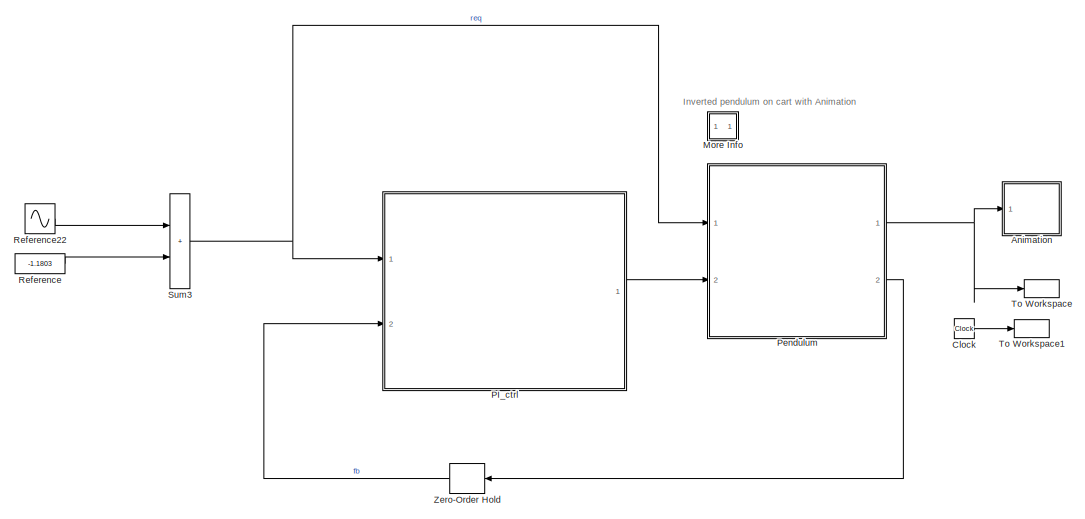
[diagram: root canvas - part 1/2, full width, top band]
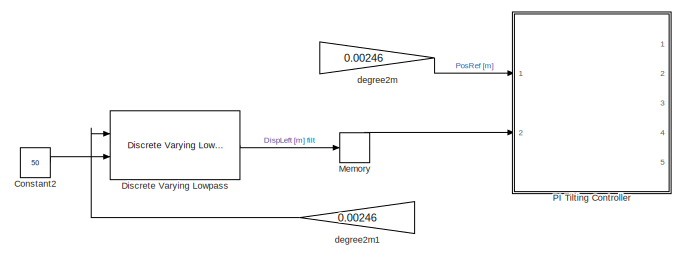
[diagram: root canvas - part 2/2, bottom left region]
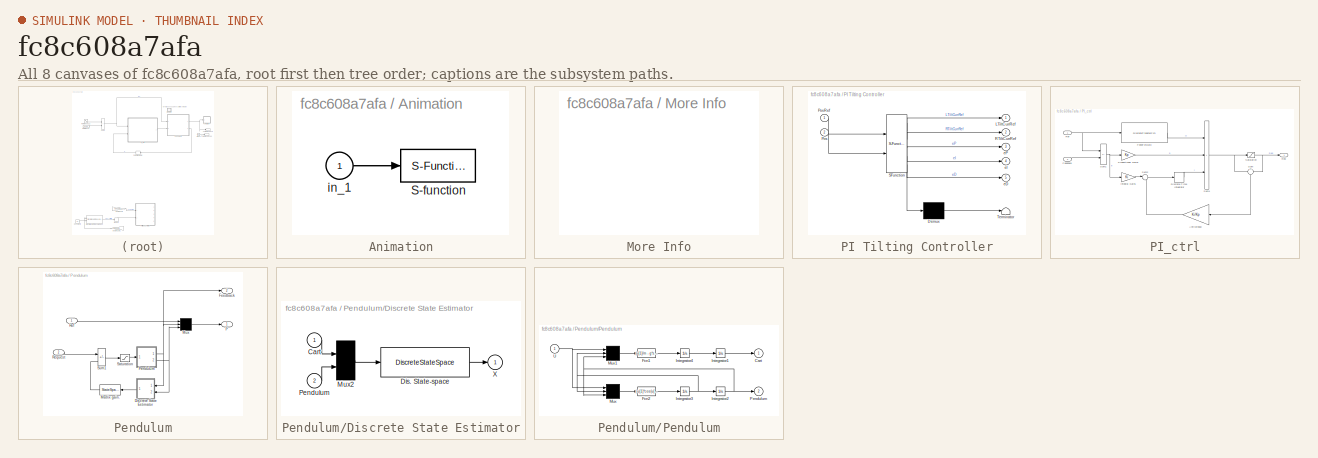
[diagram: thumbnail index - all 8 canvases of the model, root first then tree order]
MODEL slx_fc8c608a7afa
KIND model
CONFIG AbsTol = 1e-6
CONFIG EnableMultiTasking = off
CONFIG FixedStep = 0.001
CONFIG MaxStep = 0.02
CONFIG MinStep = auto
CONFIG RelTol = 1e-3
CONFIG SampleTimeConstraint = Unconstrained
CONFIG SolverName = ode8
CONFIG StartTime = 0
CONFIG StopTime = inf
BLOCK [SubSystem] Animation
  Ports = [1]
  RequestExecContextInheritance = off
BLOCK [S-Function] Animation/S-function
  DeleteFcn = pendan([],[],[],'DeleteBlock');
  EnableBusSupport = off
  FunctionName = pendan
  Parameters = RefBlock
  Ports = [1]
  SFcnIsStateOwnerBlock = off
  SFunctionDeploymentMode = off
BLOCK [Inport] Animation/in_1
BLOCK [Clock] Clock
BLOCK [Constant] Constant2
  Commented = on
  Value = 50
BLOCK [Reference] Discrete Varying Lowpass  REF=cstblocks/Linear Parameter Varying/Discrete Varying Lowpass
  Commented = on
  Ports = [2, 1]
  SourceBlock = cstblocks/Linear Parameter Varying/Discrete Varying Lowpass
  SourceProductBaseCode = CT
  SourceType = Discrete Varying Lowpass
BLOCK [Memory] Memory
  Commented = on
  InheritSampleTime = on
BLOCK [SubSystem] More Info
  OpenFcn = showExample('simulink_general/penddemoExample')
  Ports = []
  RequestExecContextInheritance = off
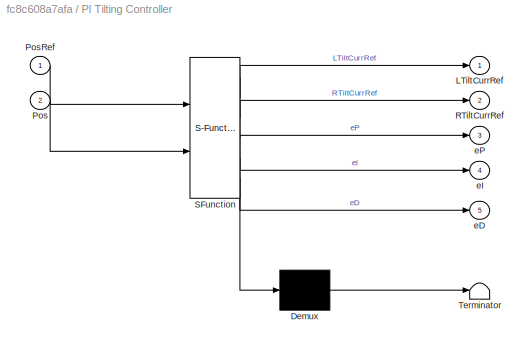
BLOCK [SubSystem] PI Tilting Controller
  Commented = on
  ErrorFcn = Stateflow.Translate.translate
  PermitHierarchicalResolution = ExplicitOnly
  Ports = [2, 5]
  RequestExecContextInheritance = off
  SFBlockType = MATLAB Function
  SystemSampleTime = 5e-3
  TreatAsAtomicUnit = on
BLOCK [Demux] PI Tilting Controller/ Demux 
  Outputs = 1
  Ports = [1, 1]
BLOCK [S-Function] PI Tilting Controller/ SFunction 
  EnableBusSupport = on
  FunctionName = sf_sfun
  PortCounts = [2 6]
  Ports = [2, 6]
  SFcnIsStateOwnerBlock = off
  SFunctionDeploymentMode = off
  Tag = Stateflow S-Function 10
BLOCK [Terminator] PI Tilting Controller/ Terminator 
BLOCK [Outport] PI Tilting Controller/LTiltCurrRef
  VectorParamsAs1DForOutWhenUnconnected = off
BLOCK [Inport] PI Tilting Controller/Pos
  Port = 2
BLOCK [Inport] PI Tilting Controller/PosRef
BLOCK [Outport] PI Tilting Controller/RTiltCurrRef
  Port = 2
  VectorParamsAs1DForOutWhenUnconnected = off
BLOCK [Outport] PI Tilting Controller/eD
  Port = 5
  VectorParamsAs1DForOutWhenUnconnected = off
BLOCK [Outport] PI Tilting Controller/eI
  Port = 4
  VectorParamsAs1DForOutWhenUnconnected = off
BLOCK [Outport] PI Tilting Controller/eP
  Port = 3
  VectorParamsAs1DForOutWhenUnconnected = off
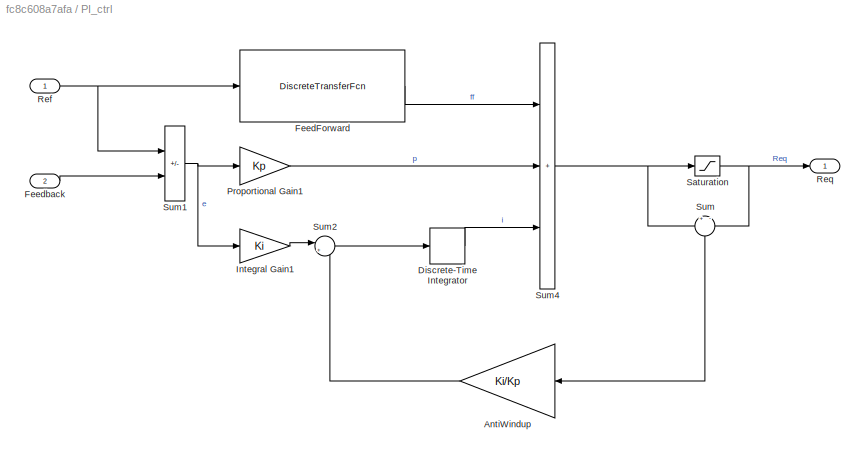
BLOCK [SubSystem] PI_ctrl
  Ports = [2, 1]
  RequestExecContextInheritance = off
BLOCK [Gain] PI_ctrl/AntiWindup
  Gain = Ki/Kp
  OutDataTypeStr = Inherit: Same as input
  ParamDataTypeStr = Inherit: Same as input
  SaturateOnIntegerOverflow = on
BLOCK [DiscreteIntegrator] PI_ctrl/Discrete-Time Integrator
  ICPrevOutput = DiscIntNeverNeededParam
  ICPrevScaledInput = DiscIntNeverNeededParam
  InitialConditionSetting = Auto
  IntegratorMethod = Accumulation: Trapezoidal
  Ports = [1, 1]
  SampleTime = -1
  gainval = Ts/5
BLOCK [DiscreteTransferFcn] PI_ctrl/FeedForward
  Denominator = [1 -0.8187]*2
  InputPortMap = u0
  Numerator = [7.12 -7.12]*0.1
  Ports = [1, 1]
  SampleTime = Ts
BLOCK [Inport] PI_ctrl/Feedback
  NameLocation = top
  Port = 2
BLOCK [Gain] PI_ctrl/Integral Gain1
  Gain = Ki
  OutDataTypeStr = Inherit: Same as input
  ParamDataTypeStr = Inherit: Same as input
  SaturateOnIntegerOverflow = on
BLOCK [Gain] PI_ctrl/Proportional Gain1
  Gain = Kp
  OutDataTypeStr = Inherit: Same as input
  ParamDataTypeStr = Inherit: Same as input
  SaturateOnIntegerOverflow = on
BLOCK [Inport] PI_ctrl/Ref
BLOCK [Outport] PI_ctrl/Req
BLOCK [Saturate] PI_ctrl/Saturation
  LowerLimit = -Req_lim
  UpperLimit = Req_lim
BLOCK [Sum] PI_ctrl/Sum
  Inputs = +|-
  NameLocation = left
  Ports = [2, 1]
BLOCK [Sum] PI_ctrl/Sum1
  IconShape = rectangular
  InputSameDT = on
  Inputs = +-
  OutDataTypeStr = Inherit: Same as first input
  Ports = [2, 1]
  SaturateOnIntegerOverflow = on
BLOCK [Sum] PI_ctrl/Sum2
  Inputs = |+-
  Ports = [2, 1]
BLOCK [Sum] PI_ctrl/Sum4
  IconShape = rectangular
  InputSameDT = on
  Inputs = +++
  OutDataTypeStr = Inherit: Same as first input
  Ports = [3, 1]
  SaturateOnIntegerOverflow = on
BLOCK [SubSystem] Pendulum
  Ports = [2, 2]
  RequestExecContextInheritance = off
BLOCK [SubSystem] Pendulum/Discrete State Estimator
  Ports = [2, 1]
  RequestExecContextInheritance = off
BLOCK [Inport] Pendulum/Discrete State Estimator/Cart
BLOCK [DiscreteStateSpace] Pendulum/Discrete State Estimator/Dis. State-space
  A = zeros(2)
  B = -eye(2)/Ts
  C = [0 0; 1 0; 0 0; 0 1]
  D = [1 0; 1/Ts 0; 0 1; 0 1/Ts]
  SampleTime = Ts
BLOCK [Mux] Pendulum/Discrete State Estimator/Mux2
  Inputs = 2
  Ports = [2, 1]
BLOCK [Inport] Pendulum/Discrete State Estimator/Pendulum
  Port = 2
BLOCK [Outport] Pendulum/Discrete State Estimator/X
  InitialOutput = 0
  VectorParamsAs1DForOutWhenUnconnected = off
BLOCK [Outport] Pendulum/Feedback
  Port = 2
BLOCK [StateSpace] Pendulum/Matrix gain.
  A = []
  B = []
  C = []
  D = K
  InitialCondition = 0
  Ports = [1, 1]
BLOCK [Mux] Pendulum/Mux
  Inputs = 3
  Ports = [3, 1]
BLOCK [Outport] Pendulum/P
BLOCK [SubSystem] Pendulum/Pendulum
  Ports = [1, 2]
  RequestExecContextInheritance = off
BLOCK [Outport] Pendulum/Pendulum/Cart
  InitialOutput = 0
  VectorParamsAs1DForOutWhenUnconnected = off
BLOCK [Fcn] Pendulum/Pendulum/Fcn1
  Expr = (u[1]/m - g*sin(u[3])*cos(u[3]) + l*power(u[2],2)*sin(u[3]))/(Mcart/m + power(sin(u[3]),2))
BLOCK [Fcn] Pendulum/Pendulum/Fcn2
  Expr = (-u[1]*cos(u[3])/m + (Mcart+m)*g*sin(u[3])/m - l*power(u[2],2)*sin(u[3])*cos(u[3]))/(l*(Mcart/m + power(sin(u[3]),2)))
BLOCK [Integrator] Pendulum/Pendulum/Integrator1
  Ports = [1, 1]
BLOCK [Integrator] Pendulum/Pendulum/Integrator2
  Ports = [1, 1]
BLOCK [Integrator] Pendulum/Pendulum/Integrator3
  Ports = [1, 1]
BLOCK [Integrator] Pendulum/Pendulum/Integrator4
  Ports = [1, 1]
BLOCK [Mux] Pendulum/Pendulum/Mux
  Inputs = 3
  Ports = [3, 1]
BLOCK [Mux] Pendulum/Pendulum/Mux1
  Inputs = 3
  Ports = [3, 1]
BLOCK [Outport] Pendulum/Pendulum/Pendulum
  InitialOutput = 0
  Port = 2
  VectorParamsAs1DForOutWhenUnconnected = off
BLOCK [Inport] Pendulum/Pendulum/U
BLOCK [Inport] Pendulum/Ref
BLOCK [Inport] Pendulum/Request
  Port = 2
BLOCK [Saturate] Pendulum/Saturation
  LowerLimit = -10
  UpperLimit = 10
BLOCK [Sum] Pendulum/Sum1
  IconShape = rectangular
  InputSameDT = on
  Inputs = +-
  OutDataTypeStr = Inherit: Same as first input
  Ports = [2, 1]
  SaturateOnIntegerOverflow = on
BLOCK [Constant] Reference
  Value = -1.1803
BLOCK [Sin] Reference22
  Amplitude = 2
  Frequency = 0.5
  Ports = [0, 1]
BLOCK [Sum] Sum3
  IconShape = rectangular
  InputSameDT = on
  OutDataTypeStr = Inherit: Same as first input
  Ports = [2, 1]
  SaturateOnIntegerOverflow = on
BLOCK [ToWorkspace] To Workspace
  Ports = [1]
  SampleTime = 0.1
  VariableName = y
BLOCK [ToWorkspace] To Workspace1
  Ports = [1]
  SampleTime = 0.1
  VariableName = t
BLOCK [ZeroOrderHold] Zero-Order Hold
  SampleTime = 0.040
BLOCK [Gain] degree2m
  Commented = on
  Gain = 0.00246
BLOCK [Gain] degree2m1
  Commented = on
  Gain = 0.00246
ANNOTATION (root): Inverted pendulum on cart with Animation
LINE Animation/in_1:1 -> Animation/S-function:1
LINE Clock:1 -> To Workspace1:1
LINE Constant2:1 -> Discrete Varying Lowpass:2
LINE Discrete Varying Lowpass:1 -> Memory:1
LINE Memory:1 -> PI Tilting Controller:2
LINE PI_ctrl/AntiWindup:1 -> PI_ctrl/Sum2:2
LINE PI_ctrl/Discrete-Time Integrator:1 -> PI_ctrl/Sum4:3
LINE PI_ctrl/FeedForward:1 -> PI_ctrl/Sum4:1
LINE PI_ctrl/Feedback:1 -> PI_ctrl/Sum1:2
LINE PI_ctrl/Integral Gain1:1 -> PI_ctrl/Sum2:1
LINE PI_ctrl/Proportional Gain1:1 -> PI_ctrl/Sum4:2
NET PI_ctrl/Ref:1 -> PI_ctrl/FeedForward:1, PI_ctrl/Sum1:1
NET PI_ctrl/Saturation:1 -> PI_ctrl/Req:1, PI_ctrl/Sum:2
NET PI_ctrl/Sum1:1 -> PI_ctrl/Integral Gain1:1, PI_ctrl/Proportional Gain1:1
LINE PI_ctrl/Sum2:1 -> PI_ctrl/Discrete-Time Integrator:1
NET PI_ctrl/Sum4:1 -> PI_ctrl/Saturation:1, PI_ctrl/Sum:1
LINE PI_ctrl/Sum:1 -> PI_ctrl/AntiWindup:1
LINE PI_ctrl:1 -> Pendulum:2
LINE Pendulum/Discrete State Estimator/Cart:1 -> Pendulum/Discrete State Estimator/Mux2:1
LINE Pendulum/Discrete State Estimator/Dis. State-space:1 -> Pendulum/Discrete State Estimator/X:1
LINE Pendulum/Discrete State Estimator/Mux2:1 -> Pendulum/Discrete State Estimator/Dis. State-space:1
LINE Pendulum/Discrete State Estimator/Pendulum:1 -> Pendulum/Discrete State Estimator/Mux2:2
LINE Pendulum/Discrete State Estimator:1 -> Pendulum/Matrix gain.:1
LINE Pendulum/Matrix gain.:1 -> Pendulum/Sum1:2
LINE Pendulum/Mux:1 -> Pendulum/P:1
LINE Pendulum/Pendulum/Fcn1:1 -> Pendulum/Pendulum/Integrator4:1
LINE Pendulum/Pendulum/Fcn2:1 -> Pendulum/Pendulum/Integrator3:1
LINE Pendulum/Pendulum/Integrator1:1 -> Pendulum/Pendulum/Cart:1
NET Pendulum/Pendulum/Integrator2:1 -> Pendulum/Pendulum/Mux1:3, Pendulum/Pendulum/Mux:3, Pendulum/Pendulum/Pendulum:1
NET Pendulum/Pendulum/Integrator3:1 -> Pendulum/Pendulum/Integrator2:1, Pendulum/Pendulum/Mux1:2, Pendulum/Pendulum/Mux:2
LINE Pendulum/Pendulum/Integrator4:1 -> Pendulum/Pendulum/Integrator1:1
LINE Pendulum/Pendulum/Mux1:1 -> Pendulum/Pendulum/Fcn1:1
LINE Pendulum/Pendulum/Mux:1 -> Pendulum/Pendulum/Fcn2:1
NET Pendulum/Pendulum/U:1 -> Pendulum/Pendulum/Mux1:1, Pendulum/Pendulum/Mux:1
NET Pendulum/Pendulum:1 -> Pendulum/Discrete State Estimator:1, Pendulum/Feedback:1, Pendulum/Mux:2
NET Pendulum/Pendulum:2 -> Pendulum/Discrete State Estimator:2, Pendulum/Mux:3
LINE Pendulum/Ref:1 -> Pendulum/Mux:1
LINE Pendulum/Request:1 -> Pendulum/Sum1:1
LINE Pendulum/Saturation:1 -> Pendulum/Pendulum:1
LINE Pendulum/Sum1:1 -> Pendulum/Saturation:1
NET Pendulum:1 -> Animation:1, To Workspace:1
LINE Pendulum:2 -> Zero-Order Hold:1
LINE Reference22:1 -> Sum3:1
LINE Reference:1 -> Sum3:2
NET Sum3:1 -> PI_ctrl:1, Pendulum:1
LINE Zero-Order Hold:1 -> PI_ctrl:2
LINE degree2m1:1 -> Discrete Varying Lowpass:1
LINE degree2m:1 -> PI Tilting Controller:1
note: NET lines group one-source signal fan-out (src -> all destinations, sorted); 1:1 wires keep LINE
CHART PI Tilting Controller states=1 transitions=1
  STATE_LABEL 'eML_blk_kernel()'
  STATE_LABEL 'SCRIPT:\nfunction [LTiltCurrRef, RTiltCurrRef,eP,eI,eD] = fcn(PosRef,Pos)\npersistent uk1 ek1 ek2\nif (isempty(uk1))\n    uk1 = 0;\n    ek1 = 0;\n    ek2 = 0;\nend\n\n% +/- 0.076 m\npos_lim = 0.02;\nimax = 10;\n\nKp =-9.4;\nKi = 0.01;\nKd = 0;\n\nif (PosRef > pos_lim)\n    PosRef = pos_lim;\nend\nif (PosRef <- pos_lim)\n   PosRef = -pos_lim;\nend\n\ne = PosRef - Pos;\n\n\nDu = Ki * e + Kp * (e - ek1) + Kd * (e - 2*ek1 + ek2...<+211ch>'
CHART  states=0 transitions=0
